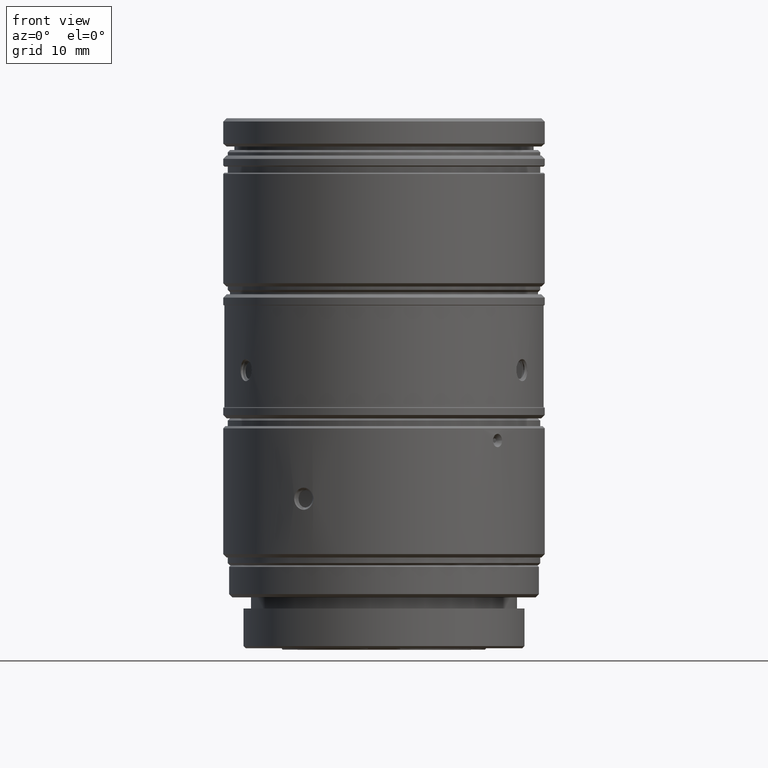
[diagram: clean part render]
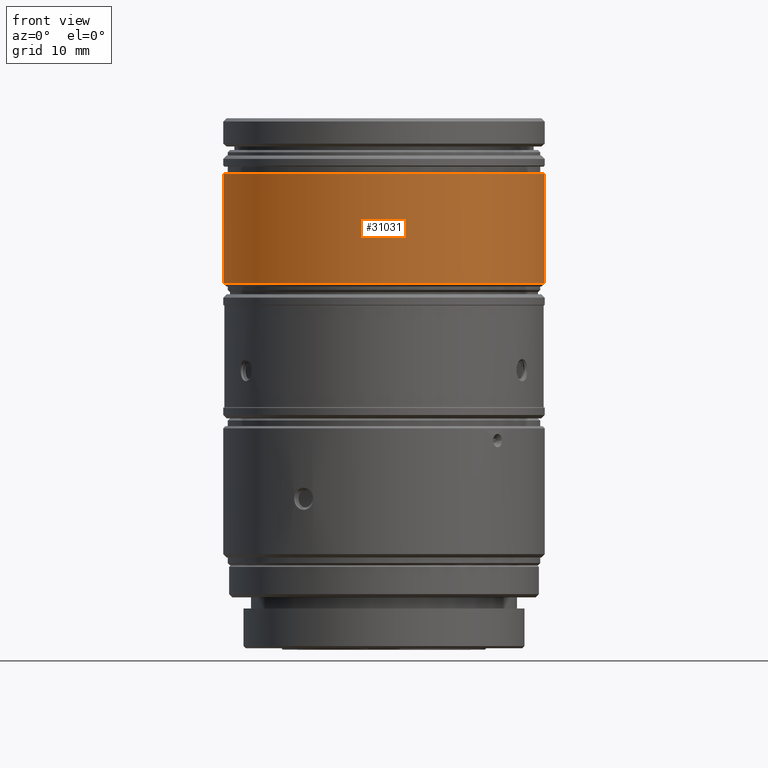
[diagram: same view with one face highlighted and labeled with its STEP entity id]
A machine part, front view. The second image highlights one B-rep face of the part: STEP entity #31031.
In plain terms, the highlighted cylindrical surface (partial cylindrical patch) has radius 14.5 mm, axis along (0, 0, 1).
Its self-contained STEP definition (entity closure, byte-faithful):
#762 = CARTESIAN_POINT ( 'NONE',  ( 5.817568649035819010E-14, 1.040834085586080097E-17, -9.768547123286030143 ) ) ;
#1400 = AXIS2_PLACEMENT_3D ( 'NONE', #39917, #46907, #47395 ) ;
#1884 = CARTESIAN_POINT ( 'NONE',  ( 4.043807667504519933E-15, 2.366146907649850181E-18, 34.73598828180959686 ) ) ;
#3783 = CIRCLE ( 'NONE', #1400, 14.49999955006050101 ) ;
#6549 = ORIENTED_EDGE ( 'NONE', *, *, #40105, .T. ) ;
#9058 = AXIS2_PLACEMENT_3D ( 'NONE', #18854, #49003, #30292 ) ;
#11062 = CARTESIAN_POINT ( 'NONE',  ( -14.49999955006044061, 1.040834085586080097E-17, -9.768547123286030143 ) ) ;
#14265 = VERTEX_POINT ( 'NONE', #29448 ) ;
#14480 = CARTESIAN_POINT ( 'NONE',  ( 14.49999955006050278, -1.765329462806101234E-15, 34.73598828180961107 ) ) ;
#16431 = VERTEX_POINT ( 'NONE', #20902 ) ;
#18854 = CARTESIAN_POINT ( 'NONE',  ( 1.560715213184499973E-14, 2.366146907678780345E-18, 24.86506633809439748 ) ) ;
#19491 = DIRECTION ( 'NONE',  ( -1.000000000000000000, 0.000000000000000000, 0.000000000000000000 ) ) ;
#19569 = ORIENTED_EDGE ( 'NONE', *, *, #23380, .T. ) ;
#20789 = CARTESIAN_POINT ( 'NONE',  ( 14.49999955006055963, -1.765329462806104587E-15, -9.768547123286030143 ) ) ;
#20902 = CARTESIAN_POINT ( 'NONE',  ( 14.49999955006051522, -1.765329462806102023E-15, 24.86506633809441524 ) ) ;
#23380 = EDGE_CURVE ( 'NONE', #16431, #49164, #35988, .T. ) ;
#23643 = CIRCLE ( 'NONE', #31617, 14.49999955006050101 ) ;
#24191 = DIRECTION ( 'NONE',  ( 0.000000000000000000, 0.000000000000000000, 1.000000000000000000 ) ) ;
#25300 = DIRECTION ( 'NONE',  ( 9.570888440307949887E-16, 2.930272317729710368E-30, -1.000000000000000000 ) ) ;
#26011 = LINE ( 'NONE', #11062, #36241 ) ;
#29448 = CARTESIAN_POINT ( 'NONE',  ( -14.49999955006049746, 2.366146907649850181E-18, 34.73598828180958265 ) ) ;
#30292 = DIRECTION ( 'NONE',  ( 1.000000000000000000, 0.000000000000000000, 1.196361055038494032E-15 ) ) ;
#30523 = VERTEX_POINT ( 'NONE', #35415 ) ;
#31031 = ADVANCED_FACE ( 'NONE', ( #42647 ), #34933, .T. ) ;
#31617 = AXIS2_PLACEMENT_3D ( 'NONE', #1884, #25300, #32057 ) ;
#32057 = DIRECTION ( 'NONE',  ( -1.000000000000000000, 0.000000000000000000, -9.570888440307953832E-16 ) ) ;
#33000 = DIRECTION ( 'NONE',  ( 0.000000000000000000, 0.000000000000000000, 1.000000000000000000 ) ) ;
#34933 = CYLINDRICAL_SURFACE ( 'NONE', #44330, 14.49999955006050101 ) ;
#35415 = CARTESIAN_POINT ( 'NONE',  ( -14.49999955006048324, 1.040834085586082254E-17, 24.86506633809437972 ) ) ;
#35743 = EDGE_LOOP ( 'NONE', ( #46248, #6549, #19569, #43896, #42122 ) ) ;
#35988 = LINE ( 'NONE', #20789, #37741 ) ;
#36076 = EDGE_CURVE ( 'NONE', #49164, #14265, #23643, .T. ) ;
#36191 = CARTESIAN_POINT ( 'NONE',  ( -14.49991121056272902, -0.05061444394825352633, 24.86506633809437972 ) ) ;
#36241 = VECTOR ( 'NONE', #33000, 1000.000000000000000 ) ;
#37663 = EDGE_CURVE ( 'NONE', #30523, #41540, #3783, .T. ) ;
#37741 = VECTOR ( 'NONE', #43230, 1000.000000000000000 ) ;
#39917 = CARTESIAN_POINT ( 'NONE',  ( 1.560715213184499973E-14, 2.366146907678780345E-18, 24.86506633809439748 ) ) ;
#40105 = EDGE_CURVE ( 'NONE', #41540, #16431, #44889, .T. ) ;
#41540 = VERTEX_POINT ( 'NONE', #36191 ) ;
#42122 = ORIENTED_EDGE ( 'NONE', *, *, #42621, .F. ) ;
#42621 = EDGE_CURVE ( 'NONE', #30523, #14265, #26011, .T. ) ;
#42647 = FACE_OUTER_BOUND ( 'NONE', #35743, .T. ) ;
#43230 = DIRECTION ( 'NONE',  ( 0.000000000000000000, 0.000000000000000000, 1.000000000000000000 ) ) ;
#43896 = ORIENTED_EDGE ( 'NONE', *, *, #36076, .T. ) ;
#44330 = AXIS2_PLACEMENT_3D ( 'NONE', #762, #24191, #19491 ) ;
#44889 = CIRCLE ( 'NONE', #9058, 14.49999955006050101 ) ;
#46248 = ORIENTED_EDGE ( 'NONE', *, *, #37663, .T. ) ;
#46907 = DIRECTION ( 'NONE',  ( -1.196361055038489890E-15, -2.931265375357370166E-30, 1.000000000000000000 ) ) ;
#47395 = DIRECTION ( 'NONE',  ( 1.000000000000000000, 0.000000000000000000, 1.196361055038494032E-15 ) ) ;
#49003 = DIRECTION ( 'NONE',  ( -1.196361055038489890E-15, -2.931265375357370166E-30, 1.000000000000000000 ) ) ;
#49164 = VERTEX_POINT ( 'NONE', #14480 ) ;